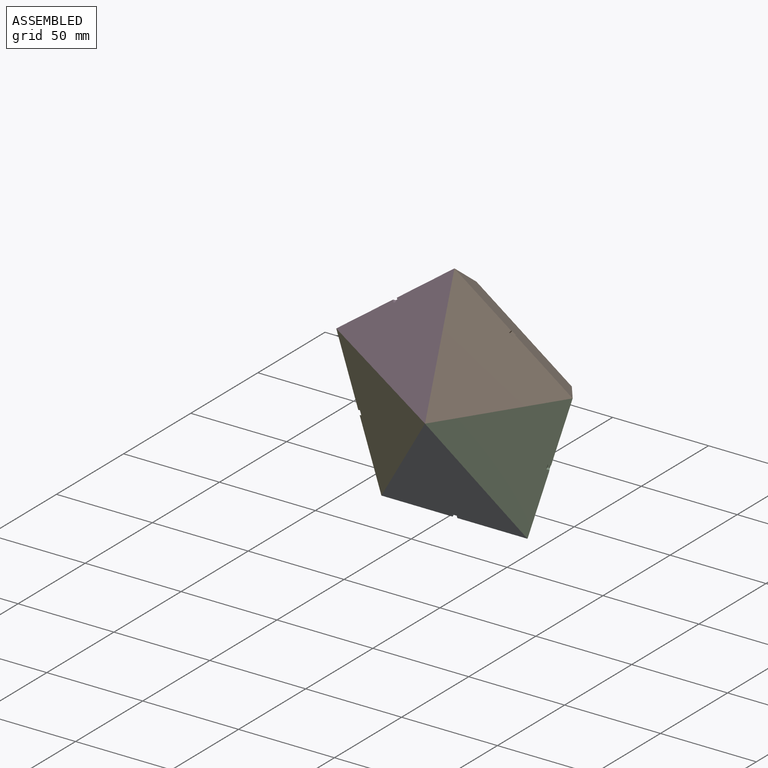
[diagram: assembled view]
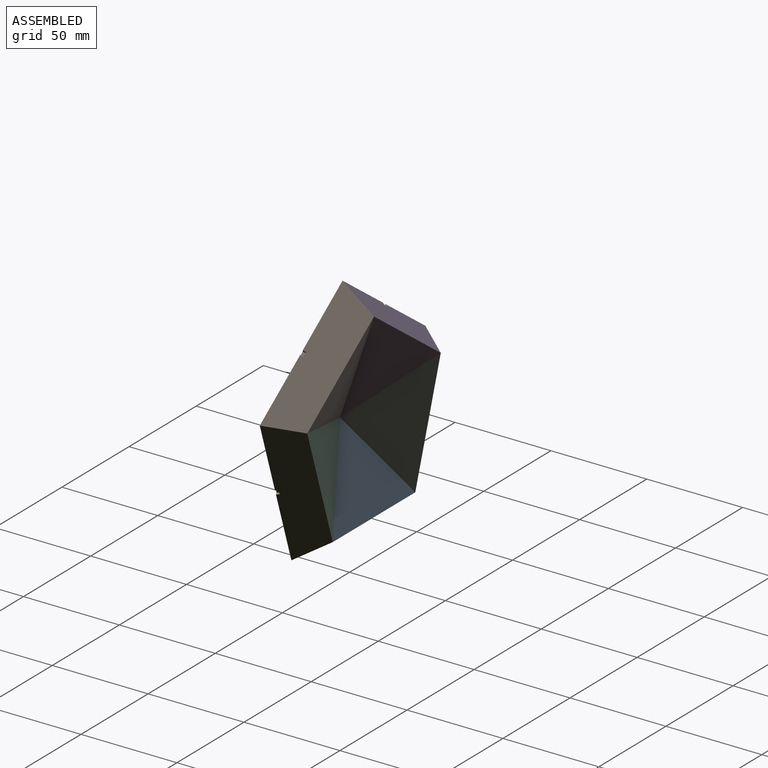
[diagram: assembled view, second angle]
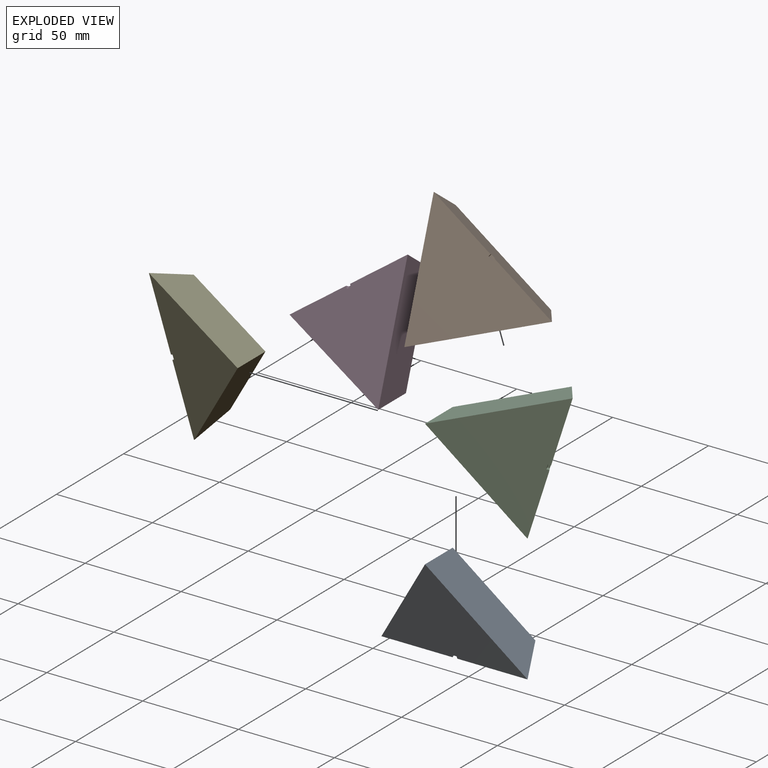
[diagram: exploded view]
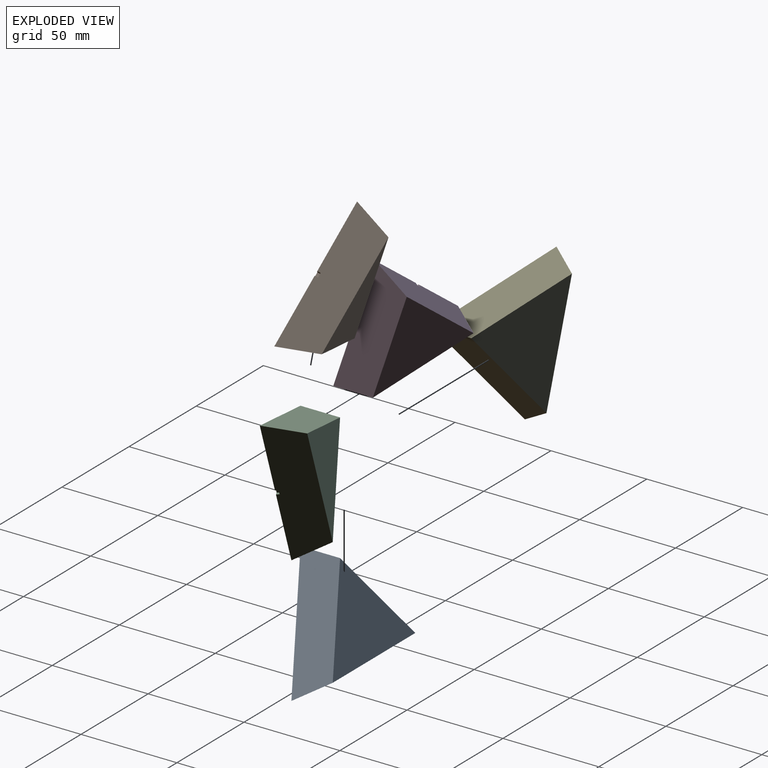
[diagram: exploded view, second angle]
ASSEMBLY  parts=5 mates=4
PART A: 9 faces, bbox 76.2x38.3x52.4 mm
  f0: plane 76.2x52.44mm, normal (0,-0.92,-0.39), area 2162.1mm2, adj f1,f2,f3,f5,f6,f7
  f1: plane 76.2x16.41mm, normal (0,0.53,-0.85), area 1323.8mm2, adj f0,f2,f3,f4,f5,f6,f8
  f2: plane 52.44x38.33mm, normal (-0.81,0,0.59), area 1209mm2, adj f0,f1,f3,f4
  f3: plane 52.44x38.33mm, normal (0.81,0,0.59), area 1209mm2, adj f0,f1,f2,f4
  f4: plane 61.46x42.3mm, normal (0,0.92,0.39), area 1409mm2, adj f1,f2,f3
  f5: plane 1.91x1.9mm, normal (1,0,0), area 2mm2, adj f0,f1,f7,f8
  f6: plane 1.91x1.9mm, normal (-1,0,0), area 2mm2, adj f0,f1,f7,f8
  f7: plane 2.47x1.45mm, normal (0,0.39,-0.92), area 3.9mm2, adj f0,f5,f6,f8
  f8: plane 2.47x1.07mm, normal (0,-0.92,-0.39), area 2.9mm2, adj f1,f5,f6,f7
PART B: same geometry as A
PART C: same geometry as A
PART D: same geometry as A
PART E: same geometry as A
PLACE A t=(-12.68,7.52,17.85)mm fixed
PLACE B rot(axis=(0,-1,0),144deg) t=(18.14,7.52,112.71)mm
PLACE C rot(axis=(0,-1,0),72deg) t=(37.19,7.52,54.08)mm
PLACE D rot(axis=(0,1,0),144deg) t=(-43.5,7.52,112.71)mm
PLACE E rot(axis=(0,1,0),72deg) t=(-62.55,7.52,54.08)mm
MATE fastened D.f2 <-> B.f3  axis (1,0,0) through (-12.68,5.49,99.67)mm
MATE fastened E.f3 <-> A.f2  axis (0.81,0,-0.59) through (-29.95,5.49,46.51)mm
MATE fastened B.f2 <-> C.f3  axis (0.31,0,-0.95) through (15.27,5.49,79.37)mm
MATE fastened C.f2 <-> A.f3  axis (-0.81,0,-0.59) through (4.59,5.49,46.51)mm
